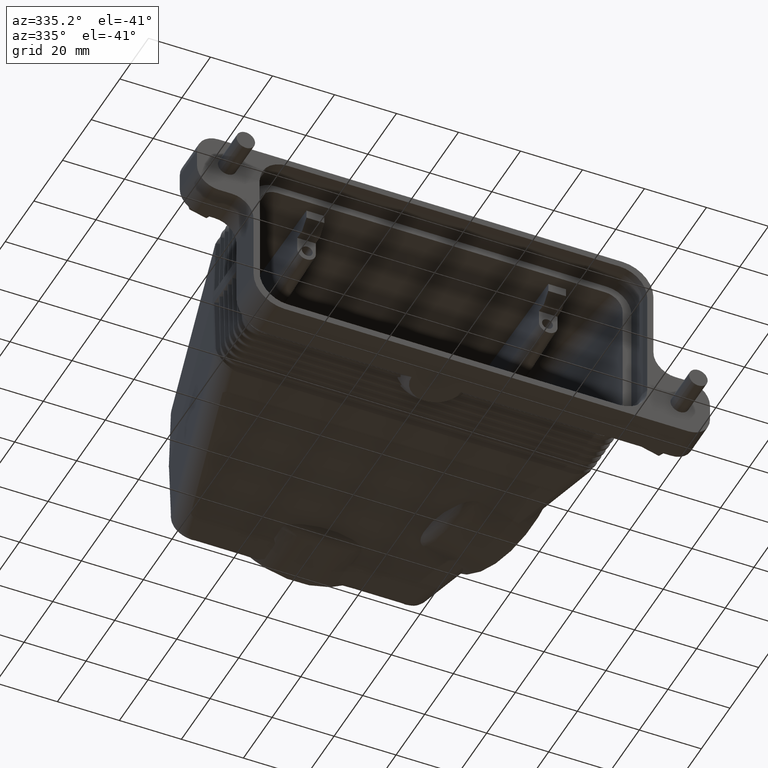
[diagram: clean part render]
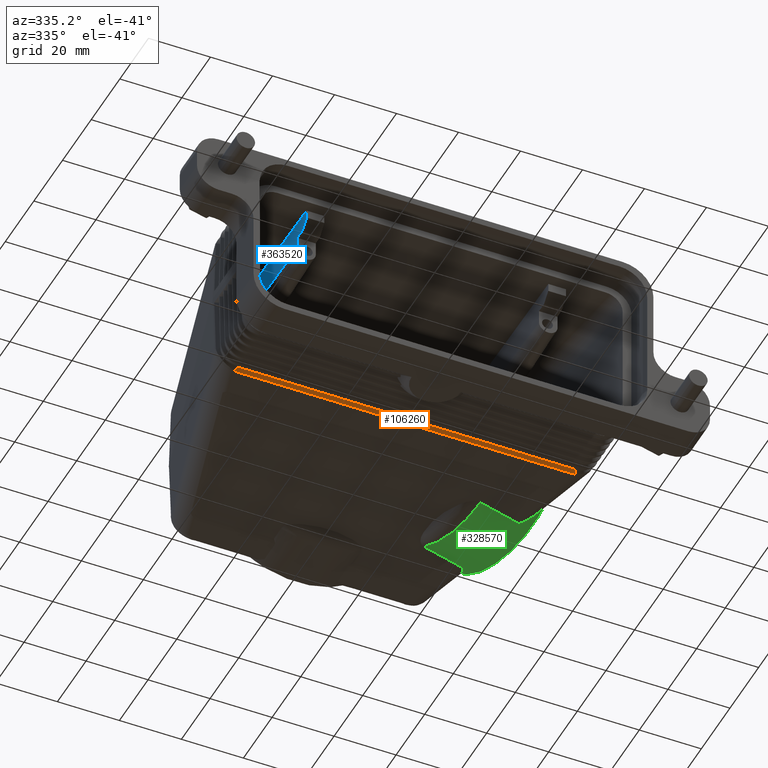
[diagram: same view with three faces highlighted in distinct colors, each labeled with its STEP entity id]
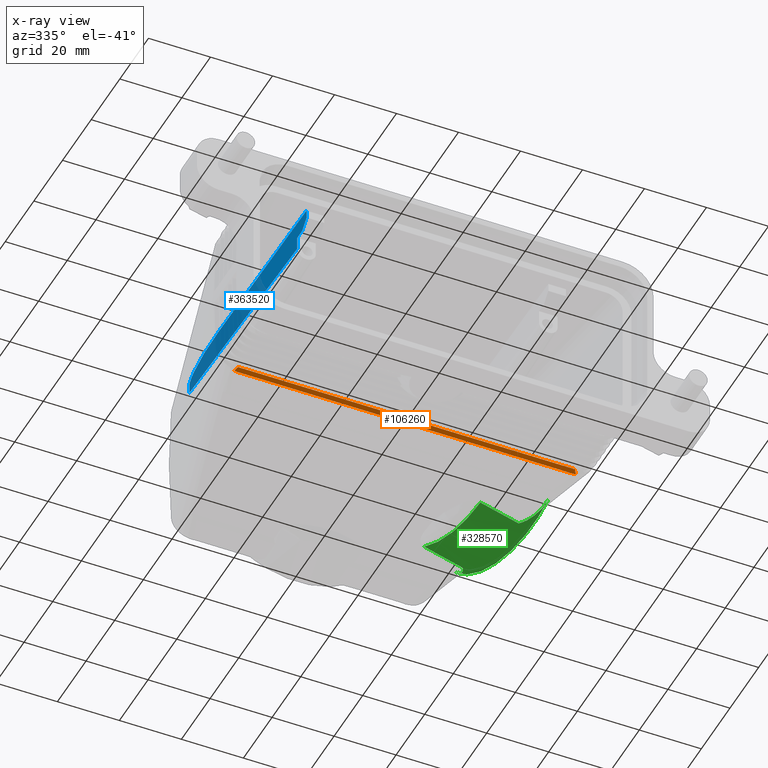
[diagram: x-ray of the same camera — body ghosted, the three highlighted faces saturated]
A machine part, auxiliary view with three faces highlighted in distinct colors.
The next image is the same camera in x-ray (body ghosted, the three faces saturated) — at least one of them is partly hidden behind the body in this view.
Their STEP definitions:

[orange] entity #106260 — the highlighted planar face has unit normal (0, -0.5547, -0.8321).
#100820=CARTESIAN_POINT('',(-77.4532993023878,29.0714931042915,
-12.6849000695277));
#100830=VERTEX_POINT('',#100820);
#101010=CARTESIAN_POINT('',(31.2231113023877,29.0714931042915,
-12.6849000695277));
#101020=VERTEX_POINT('',#101010);
#101050=CARTESIAN_POINT('',(-126.,29.0714930981126,-12.6849000654084));
#101060=DIRECTION('',(1.,1.14508620966377E-33,6.12323399573677E-17));
#101070=VECTOR('',#101060,1.);
#101080=LINE('',#101050,#101070);
#101090=EDGE_CURVE('',#100830,#101020,#101080,.T.);
#104930=CARTESIAN_POINT('',(-56.0514660972689,-3.88290137357661,
9.28469624905116));
#104940=DIRECTION('',(-0.475397519963276,0.732013807252867,
-0.488009204835246));
#104950=VECTOR('',#104940,1.);
#104960=LINE('',#104930,#104950);
#104970=CARTESIAN_POINT('',(-78.1678351297464,30.1717304203037,
-13.4183916135358));
#104980=VERTEX_POINT('',#104970);
#104990=EDGE_CURVE('',#100830,#104980,#104960,.T.);
#105370=CARTESIAN_POINT('',(-77.1020689819648,30.294143,-13.5));
#105380=VERTEX_POINT('',#105370);
#105410=CARTESIAN_POINT('',(-99.,30.294143,-13.5));
#105420=DIRECTION('',(1.,9.18485099360512E-17,0.));
#105430=VECTOR('',#105420,1.);
#105440=LINE('',#105410,#105430);
#105450=CARTESIAN_POINT('',(30.8718809819648,30.294143,-13.5));
#105460=VERTEX_POINT('',#105450);
#105470=EDGE_CURVE('',#105380,#105460,#105440,.T.);
#105810=CARTESIAN_POINT('',(-77.1020689819648,19.794143,-6.5));
#105820=DIRECTION('',(5.09483864845226E-17,-0.55470019622523,
-0.832050294337843));
#105830=DIRECTION('',(-3.39655909896819E-17,-0.832050294337843,
0.55470019622523));
#105840=AXIS2_PLACEMENT_3D('',#105810,#105820,#105830);
#105850=ELLIPSE('',#105840,12.6194294641239,7.);
#105860=EDGE_CURVE('',#104980,#105380,#105850,.T.);
#106000=CARTESIAN_POINT('',(-99.6150964,30.294143,-13.5));
#106010=DIRECTION('',(5.09483864845226E-17,-0.55470019622523,
-0.832050294337843));
#106020=DIRECTION('',(-3.39655909896819E-17,-0.832050294337843,
0.55470019622523));
#106030=AXIS2_PLACEMENT_3D('',#106000,#106010,#106020);
#106040=PLANE('',#106030);
#106050=ORIENTED_EDGE('',*,*,#104990,.T.);
#106060=ORIENTED_EDGE('',*,*,#101090,.F.);
#106070=CARTESIAN_POINT('',(9.82127809726884,-3.88290137357661,
9.28469624905117));
#106080=DIRECTION('',(-0.475397519963273,-0.732013807252868,
0.488009204835247));
#106090=VECTOR('',#106080,1.);
#106100=LINE('',#106070,#106090);
#106110=CARTESIAN_POINT('',(31.9376471297462,30.1717304203038,
-13.4183916135358));
#106120=VERTEX_POINT('',#106110);
#106130=EDGE_CURVE('',#106120,#101020,#106100,.T.);
#106140=ORIENTED_EDGE('',*,*,#106130,.T.);
#106150=CARTESIAN_POINT('',(30.8718809819648,19.7941430000001,-6.5));
#106160=DIRECTION('',(5.09483864845226E-17,-0.55470019622523,
-0.832050294337843));
#106170=DIRECTION('',(-3.39655909896819E-17,-0.832050294337843,
0.55470019622523));
#106180=AXIS2_PLACEMENT_3D('',#106150,#106160,#106170);
#106190=ELLIPSE('',#106180,12.6194294641239,7.);
#106200=EDGE_CURVE('',#105460,#106120,#106190,.T.);
#106210=ORIENTED_EDGE('',*,*,#106200,.T.);
#106220=ORIENTED_EDGE('',*,*,#105470,.T.);
#106230=ORIENTED_EDGE('',*,*,#105860,.T.);
#106240=EDGE_LOOP('',(#106230,#106220,#106210,#106140,#106060,#106050));
#106250=FACE_OUTER_BOUND('',#106240,.T.);
#106260=ADVANCED_FACE('',(#106250),#106040,.T.);

[blue] entity #363520 — the highlighted planar face has unit normal (-0.9997, -0.0233, 0).
#361330=CARTESIAN_POINT('',(-66.7851224582123,86.2453927759903,
28.9358444486131));
#361340=VERTEX_POINT('',#361330);
#361370=CARTESIAN_POINT('',(-66.7851224582123,86.2453927759903,39.));
#361380=DIRECTION('',(0.,0.,1.));
#361390=VECTOR('',#361380,1.);
#361400=LINE('',#361370,#361390);
#361410=CARTESIAN_POINT('',(-66.7851224582123,86.2453927759903,
26.2546550505069));
#361420=VERTEX_POINT('',#361410);
#361430=EDGE_CURVE('',#361420,#361340,#361400,.T.);
#362050=CARTESIAN_POINT('',(-65.115094,14.494143,26.2546550505069));
#362060=VERTEX_POINT('',#362050);
#362090=CARTESIAN_POINT('',(-65.115094,14.494143,39.));
#362100=DIRECTION('',(0.,0.,-1.));
#362110=VECTOR('',#362100,1.);
#362120=LINE('',#362090,#362110);
#362130=CARTESIAN_POINT('',(-65.115094,14.494143,30.5));
#362140=VERTEX_POINT('',#362130);
#362150=EDGE_CURVE('',#362140,#362060,#362120,.T.);
#362980=CARTESIAN_POINT('',(-65.1104389494931,14.294143,36.3));
#362990=DIRECTION('',(-0.999729241314835,-0.0232689505578674,0.));
#363000=DIRECTION('',(0.,0.,1.));
#363010=AXIS2_PLACEMENT_3D('',#362980,#362990,#363000);
#363020=PLANE('',#363010);
#363030=CARTESIAN_POINT('',(-64.7777391614018,0.,30.8373548385982));
#363040=DIRECTION('',(0.0232626536972686,-0.999458702441438,
0.0232626536972686));
#363050=VECTOR('',#363040,1.);
#363060=LINE('',#363030,#363050);
#363070=CARTESIAN_POINT('',(-65.03883832172,11.21788732172,
30.57625567828));
#363080=VERTEX_POINT('',#363070);
#363090=EDGE_CURVE('',#362140,#363080,#363060,.T.);
#363100=ORIENTED_EDGE('',*,*,#363090,.T.);
#363110=ORIENTED_EDGE('',*,*,#362150,.F.);
#363120=CARTESIAN_POINT('',(-65.1104389494931,14.294143,26.2546550505069
));
#363130=DIRECTION('',(-0.0232689505578674,0.999729241314835,0.));
#363140=VECTOR('',#363130,1.);
#363150=LINE('',#363120,#363140);
#363160=EDGE_CURVE('',#362060,#361420,#363150,.T.);
#363170=ORIENTED_EDGE('',*,*,#363160,.F.);
#363180=ORIENTED_EDGE('',*,*,#361430,.F.);
#363190=CARTESIAN_POINT('',(-66.3300448290065,66.6933974312147,
29.3577896453234));
#363200=DIRECTION('',(-0.999729241314835,-0.0232689505578674,0.));
#363210=DIRECTION('',(-0.0232625675397487,0.999455000762165,
-0.0234212382883605));
#363220=AXIS2_PLACEMENT_3D('',#363190,#363200,#363210);
#363230=ELLIPSE('',#363220,19.562232622005,5.5);
#363240=CARTESIAN_POINT('',(-66.3327855101659,66.8111482979487,
34.8565385402481));
#363250=VERTEX_POINT('',#363240);
#363260=EDGE_CURVE('',#363250,#361340,#363230,.T.);
#363270=ORIENTED_EDGE('',*,*,#363260,.T.);
#363280=CARTESIAN_POINT('',(-64.7777391614018,0.,36.4115848890122));
#363290=DIRECTION('',(0.0232626536972686,-0.999458702441438,
0.0232626536972686));
#363300=VECTOR('',#363290,1.);
#363310=LINE('',#363280,#363300);
#363320=CARTESIAN_POINT('',(-64.9707874342853,8.29414300000001,
36.2185366161288));
#363330=VERTEX_POINT('',#363320);
#363340=EDGE_CURVE('',#363250,#363330,#363310,.T.);
#363350=ORIENTED_EDGE('',*,*,#363340,.F.);
#363360=CARTESIAN_POINT('',(-64.9707874342853,8.294143,39.));
#363370=DIRECTION('',(0.,0.,1.));
#363380=VECTOR('',#363370,1.);
#363390=LINE('',#363360,#363380);
#363400=CARTESIAN_POINT('',(-64.9707874342853,8.294143,33.5));
#363410=VERTEX_POINT('',#363400);
#363420=EDGE_CURVE('',#363410,#363330,#363390,.T.);
#363430=ORIENTED_EDGE('',*,*,#363420,.T.);
#363440=CARTESIAN_POINT('',(-64.8427735453447,2.794143,39.));
#363450=DIRECTION('',(-0.0164558603633018,0.707011034093423,
-0.707011034093423));
#363460=VECTOR('',#363450,1.);
#363470=LINE('',#363440,#363460);
#363480=EDGE_CURVE('',#363410,#363080,#363470,.T.);
#363490=ORIENTED_EDGE('',*,*,#363480,.F.);
#363500=EDGE_LOOP('',(#363490,#363430,#363350,#363270,#363180,#363170,
#363110,#363100));
#363510=FACE_OUTER_BOUND('',#363500,.T.);
#363520=ADVANCED_FACE('',(#363510),#363020,.T.);

[green] entity #328570 — the highlighted cylindrical surface (partial cylindrical patch) has radius 29 mm, axis along (-0.9659, -0.2588, 0).
#76270=CARTESIAN_POINT('',(26.2440531456227,57.6145187507029,-13.));
#76280=VERTEX_POINT('',#76270);
#76310=CARTESIAN_POINT('',(10.9414596870122,53.5142011913664,-13.));
#76320=DIRECTION('',(-0.965925826289068,-0.258819045102521,
1.38964365120066E-17));
#76330=VECTOR('',#76320,1.);
#76340=LINE('',#76310,#76330);
#76350=CARTESIAN_POINT('',(12.1417584194982,53.8358202674121,-13.));
#76360=VERTEX_POINT('',#76350);
#76370=EDGE_CURVE('',#76280,#76360,#76340,.T.);
#79420=CARTESIAN_POINT('',(5.49257675923766,78.65090405226,-13.));
#79430=VERTEX_POINT('',#79420);
#79460=CARTESIAN_POINT('',(4.29227802675152,78.3292849762142,-13.));
#79470=DIRECTION('',(-0.965925826289068,-0.258819045102521,
1.38964365120066E-17));
#79480=VECTOR('',#79470,1.);
#79490=LINE('',#79460,#79480);
#79500=CARTESIAN_POINT('',(19.5948714853773,82.4296025355548,-13.));
#79510=VERTEX_POINT('',#79500);
#79520=EDGE_CURVE('',#79510,#79430,#79490,.T.);
#79780=CARTESIAN_POINT('',(38.9920905006772,0.,-6.5));
#79790=DIRECTION('',(0.258819045102521,-0.965925826289068,0.));
#79800=DIRECTION('',(-0.965925826289068,-0.258819045102521,0.));
#79810=AXIS2_PLACEMENT_3D('',#79780,#79790,#79800);
#79820=CYLINDRICAL_SURFACE('',#79810,7.);
#80010=CARTESIAN_POINT('',(7.61686885688184,65.9217430837903,
12.9999999999997));
#80020=DIRECTION('',(-0.965925826289068,-0.258819045102521,
1.38964365120066E-17));
#80030=DIRECTION('',(0.258819045102521,-0.965925826289068,0.));
#80040=AXIS2_PLACEMENT_3D('',#80010,#80020,#80030);
#80050=CYLINDRICAL_SURFACE('',#80040,29.0000000000004);
#80060=CARTESIAN_POINT('',(21.6569599437801,91.7322431679018,
-6.68323863815509));
#80070=CARTESIAN_POINT('',(21.6761221986843,91.65166540657,
-6.77281892412332));
#80080=CARTESIAN_POINT('',(21.6937757008781,91.5701243275661,
-6.86184937776426));
#80090=CARTESIAN_POINT('',(21.709967914664,91.4876643688361,
-6.95030024080259));
#80100=CARTESIAN_POINT('',(21.7261608411367,91.4052007806997,
-7.03875499693183));
#80110=CARTESIAN_POINT('',(21.7408894148174,91.3218342458226,
-7.12661314923524));
#80120=CARTESIAN_POINT('',(21.7542017425293,91.2375924926669,
-7.21386507736826));
#80130=CARTESIAN_POINT('',(21.7675143940109,91.1533486906634,
-7.30111912755961));
#80140=CARTESIAN_POINT('',(21.7794107593411,91.068226502404,
-7.38776972441393));
#80150=CARTESIAN_POINT('',(21.7899300639431,90.9822900264544,
-7.47377108625946));
#80160=CARTESIAN_POINT('',(21.8004493686461,90.8963535496787,
-7.55977244893167));
#80170=CARTESIAN_POINT('',(21.80959160201,90.8096028316406,
-7.64512453035903));
#80180=CARTESIAN_POINT('',(21.8173956502011,90.7221041091484,
-7.72978376616242));
#80190=CARTESIAN_POINT('',(21.8330033825936,90.5471107452037,
-7.89909828916633));
#80200=CARTESIAN_POINT('',(21.8432844391855,90.3688570899856,
-8.0658991471648));
#80210=CARTESIAN_POINT('',(21.8484972495362,90.1877504671881,
-8.2299427669375));
#80220=CARTESIAN_POINT('',(21.853710059498,90.0066438579002,
-8.39398637447346));
#80230=CARTESIAN_POINT('',(21.8538545144312,89.8226843712938,
-8.55527262647961));
#80240=CARTESIAN_POINT('',(21.8491655055592,89.6362999825387,
-8.71358088988437));
#80250=CARTESIAN_POINT('',(21.844476496692,89.4499155939757,
-8.87188915312592));
#80260=CARTESIAN_POINT('',(21.8349540383725,89.2611063753604,
-9.02721936988763));
#80270=CARTESIAN_POINT('',(21.8208101619462,89.0703207324569,
-9.17937426966642));
#80280=CARTESIAN_POINT('',(21.8137382239718,88.9749279142264,
-9.25545171698681));
#80290=CARTESIAN_POINT('',(21.8055105743965,88.8790413137333,
-9.33073569638334));
#80300=CARTESIAN_POINT('',(21.796151508986,88.7827188769479,
-9.40520373734402));
#80310=CARTESIAN_POINT('',(21.7867905851387,88.6863773133411,
-9.47968656548174));
#80320=CARTESIAN_POINT('',(21.7763076654286,88.5896831047961,
-9.55329054461843));
#80330=CARTESIAN_POINT('',(21.7646974022504,88.492457848466,
-9.62617306287462));
#80340=CARTESIAN_POINT('',(21.7530847329678,88.3952124432291,
-9.69907068526238));
#80350=CARTESIAN_POINT('',(21.740336852369,88.2973883528887,
-9.77128023262268));
#80360=CARTESIAN_POINT('',(21.7264610097126,88.1990400083271,
-9.8427729780995));
#80370=CARTESIAN_POINT('',(21.7125851621662,88.1006916291064,
-9.9142657487712));
#80380=CARTESIAN_POINT('',(21.6975813830392,88.0018190052142,
-9.98504172095604));
#80390=CARTESIAN_POINT('',(21.6814549591204,87.9024770106766,
-10.0550744870939));
#80400=CARTESIAN_POINT('',(21.6653285291019,87.8031349785629,
-10.1251072797217));
#80410=CARTESIAN_POINT('',(21.6480794867515,87.703323571615,
-10.19439687995));
#80420=CARTESIAN_POINT('',(21.6297106594491,87.6030979858577,
-10.2629191158396));
#80430=CARTESIAN_POINT('',(21.611341824794,87.502872359982,
-10.3314413791574));
#80440=CARTESIAN_POINT('',(21.5918532391711,87.4022325335607,
-10.3991963037865));
#80450=CARTESIAN_POINT('',(21.571244714707,87.3012339631646,
-10.4661618216284));
#80460=CARTESIAN_POINT('',(21.5506361820094,87.2002353524173,
-10.5331273662246));
#80470=CARTESIAN_POINT('',(21.5289077459796,87.0988779566,
-10.5993035418669));
#80480=CARTESIAN_POINT('',(21.5060555821104,86.9972175163105,
-10.6646701948257));
#80490=CARTESIAN_POINT('',(21.4832034096478,86.8955570377922,
-10.7300368723652));
#80500=CARTESIAN_POINT('',(21.4592275461718,86.793593450577,
-10.7945940786051));
#80510=CARTESIAN_POINT('',(21.4341198325194,86.6913829054411,
-10.8583233239849));
#80520=CARTESIAN_POINT('',(21.4090121107128,86.5891723271103,
-10.922052590062));
#80530=CARTESIAN_POINT('',(21.3827725765624,86.486714698616,
-10.9849539620775));
#80540=CARTESIAN_POINT('',(21.3553879479597,86.3840668355747,
-11.047010296596));
#80550=CARTESIAN_POINT('',(21.3280033128147,86.2814189480103,
-11.1090666459401));
#80560=CARTESIAN_POINT('',(21.2994736215318,86.1785806992284,
-11.1702780425221));
#80570=CARTESIAN_POINT('',(21.2697795736839,86.0756099863657,
-11.230628292984));
#80580=CARTESIAN_POINT('',(21.240085522586,85.9726392622326,
-11.2909785500514));
#80590=CARTESIAN_POINT('',(21.2092271528106,85.8695359044657,
-11.350467767049));
#80600=CARTESIAN_POINT('',(21.1771781228039,85.766359513932,
-11.4090802127079));
#80610=CARTESIAN_POINT('',(21.1451290952161,85.6631831311858,
-11.467692653943));
#80620=CARTESIAN_POINT('',(21.1118894432907,85.5599334919959,
-11.5254284557247));
#80630=CARTESIAN_POINT('',(21.0774246098921,85.4566727852118,
-11.5822717502759));
#80640=CARTESIAN_POINT('',(21.0429597879184,85.3534121126577,
-11.6391150259841));
#80650=CARTESIAN_POINT('',(21.0072698157215,85.250140079702,
-11.6950659582029));
#80660=CARTESIAN_POINT('',(20.9703105662149,85.1469226828118,
-11.7501078088149));
#80670=CARTESIAN_POINT('',(20.9333513417841,85.0437053559514,
-11.8051496220828));
#80680=CARTESIAN_POINT('',(20.8951228622487,84.9405422831203,
-11.8592825573394));
#80690=CARTESIAN_POINT('',(20.8555698640877,84.8375049184397,
-11.9124881049082));
#80700=CARTESIAN_POINT('',(20.8160169111091,84.7344676714618,
-11.9656935916987));
#80710=CARTESIAN_POINT('',(20.7751394453921,84.631555634218,
-12.0179719449448));
#80720=CARTESIAN_POINT('',(20.7328692530157,84.5288479216259,
-12.0693017731417));
#80730=CARTESIAN_POINT('',(20.6905991348855,84.4261403894366,
-12.1206315111794));
#80740=CARTESIAN_POINT('',(20.646936267808,84.3236365304373,
-12.1710130430862));
#80750=CARTESIAN_POINT('',(20.6017973895353,84.2214260342092,
-12.2204207226169));
#80760=CARTESIAN_POINT('',(20.5566562736065,84.1192104711308,
-12.2698308514197));
#80770=CARTESIAN_POINT('',(20.5100497263795,84.0173102951428,
-12.3182567350193));
#80780=CARTESIAN_POINT('',(20.461846337114,83.9157647364469,
-12.3656971316383));
#80790=CARTESIAN_POINT('',(20.4136205368432,83.8141719665884,
-12.4131595845275));
#80800=CARTESIAN_POINT('',(20.3636680159853,83.7126663053603,
-12.4597597445292));
#80810=CARTESIAN_POINT('',(20.311897803596,83.6114923831424,
-12.5053902981679));
#80820=CARTESIAN_POINT('',(20.2601274891622,83.5103182614999,
-12.5510209417493));
#80830=CARTESIAN_POINT('',(20.2065396650013,83.409475162353,
-12.5956824000365));
#80840=CARTESIAN_POINT('',(20.1510198001303,83.3092126160718,
-12.6392731183224));
#80850=CARTESIAN_POINT('',(20.095499844546,83.2089499059727,
-12.6828639078308));
#80860=CARTESIAN_POINT('',(20.0380478384787,83.1092663846526,
-12.7253846636499));
#80870=CARTESIAN_POINT('',(19.9785180425686,83.0104205472991,
-12.766736143933));
#80880=CARTESIAN_POINT('',(19.9487530587527,82.9609974860552,
-12.7874119437165));
#80890=CARTESIAN_POINT('',(19.9184679693535,82.9117838196451,
-12.807795518646));
#80900=CARTESIAN_POINT('',(19.8876408943461,82.8628131976938,
-12.8278743202989));
#80910=CARTESIAN_POINT('',(19.8568138192937,82.8138425756713,
-12.8479531219811));
#80920=CARTESIAN_POINT('',(19.8254447369972,82.765114907415,
-12.8677271915808));
#80930=CARTESIAN_POINT('',(19.7935090423681,82.71666531125,
-12.8871835671382));
#80940=CARTESIAN_POINT('',(19.761573354031,82.6682157246307,
-12.9066399388623));
#80950=CARTESIAN_POINT('',(19.7290710185363,82.6200440967779,
-12.9257786661031));
#80960=CARTESIAN_POINT('',(19.6959744826072,82.5721875438524,
-12.9445860984765));
#80970=CARTESIAN_POINT('',(19.6628779621004,82.5243310132268,
-12.9633935220862));
#80980=CARTESIAN_POINT('',(19.629187188724,82.4767894180247,
-12.9818697096791));
#80990=CARTESIAN_POINT('',(19.594871485374,82.4296025355671,
-12.9999999999937));
#81000=B_SPLINE_CURVE_WITH_KNOTS('',3,(#80060,#80070,#80080,#80090,
#80100,#80110,#80120,#80130,#80140,#80150,#80160,#80170,#80180,#80190,
#80200,#80210,#80220,#80230,#80240,#80250,#80260,#80270,#80280,#80290,
#80300,#80310,#80320,#80330,#80340,#80350,#80360,#80370,#80380,#80390,
#80400,#80410,#80420,#80430,#80440,#80450,#80460,#80470,#80480,#80490,
#80500,#80510,#80520,#80530,#80540,#80550,#80560,#80570,#80580,#80590,
#80600,#80610,#80620,#80630,#80640,#80650,#80660,#80670,#80680,#80690,
#80700,#80710,#80720,#80730,#80740,#80750,#80760,#80770,#80780,#80790,
#80800,#80810,#80820,#80830,#80840,#80850,#80860,#80870,#80880,#80890,
#80900,#80910,#80920,#80930,#80940,#80950,#80960,#80970,#80980,#80990),
.UNSPECIFIED.,.F.,.F.,(4,3,3,3,3,3,3,3,3,3,3,3,3,3,3,3,3,3,3,3,3,3,3,3,3
,3,3,3,3,3,3,4),(0.,0.366006507096595,0.732023825388874,1.09810602140899
,1.46416923093882,2.19682874463189,2.93039743936483,3.66402541442328,
4.03053371004056,4.39669564280054,4.76340771806067,5.13090354719218,
5.49902133663297,5.86760479814104,6.23650480358824,6.60558087793723,
6.97470251266021,7.34375027450955,7.71261667747386,8.08120678009394,
8.4494384682502,8.81724238899219,9.18456152087274,9.55135041240394,
9.91758888330653,10.2844571996193,10.6521441265358,11.0199724953961,
11.2037814403929,11.3874632613826,11.5709937887651,11.7543644354718),
.UNSPECIFIED.);
#81010=SURFACE_CURVE('',#81000,(#80050,#79820),.CURVE_3D.);
#81020=CARTESIAN_POINT('',(21.6569599437802,91.7322431679018,
-6.68323863815509));
#81030=VERTEX_POINT('',#81020);
#81040=EDGE_CURVE('',#81030,#79510,#81010,.T.);
#81740=CARTESIAN_POINT('',(38.9920905006772,0.,-6.5));
#81750=DIRECTION('',(0.258819045102521,-0.965925826289068,0.));
#81760=DIRECTION('',(-0.965925826289068,-0.258819045102521,0.));
#81770=AXIS2_PLACEMENT_3D('',#81740,#81750,#81760);
#81780=CYLINDRICAL_SURFACE('',#81770,7.);
#81830=CARTESIAN_POINT('',(32.681194451639,50.5892398700185,
-6.68323863815512));
#81840=VERTEX_POINT('',#81830);
#81890=CARTESIAN_POINT('',(32.6811944516389,50.5892398700185,
-6.68323863815512));
#81900=CARTESIAN_POINT('',(32.6574786055251,50.6686769582921,
-6.77290196792552));
#81910=CARTESIAN_POINT('',(32.6319686016571,50.7482018234271,
-6.86202309703613));
#81920=CARTESIAN_POINT('',(32.6047335415521,50.8277825363975,
-6.95055302308652));
#81930=CARTESIAN_POINT('',(32.5774978842038,50.9073649945096,
-7.03908489052783));
#81940=CARTESIAN_POINT('',(32.5485320412888,50.9870178318382,
-7.12704167377304));
#81950=CARTESIAN_POINT('',(32.5179054956781,51.0667026561132,
-7.21437122794697));
#81960=CARTESIAN_POINT('',(32.4566603519878,51.2260516266007,
-7.38900767443935));
#81970=CARTESIAN_POINT('',(32.3887322280555,51.3856416832028,
-7.56125621254002));
#81980=CARTESIAN_POINT('',(32.3146154547614,51.5452348060096,
-7.73081543159498));
#81990=CARTESIAN_POINT('',(32.2775576839196,51.6250300414206,
-7.81559363232587));
#82000=CARTESIAN_POINT('',(32.23895400805,51.7048226730763,
-7.89969689530012));
#82010=CARTESIAN_POINT('',(32.1988683830899,51.7845759994289,
-7.98308622384644));
#82020=CARTESIAN_POINT('',(32.1587780600908,51.8643386728787,
-8.06648532562969));
#82030=CARTESIAN_POINT('',(32.1172328904433,51.9440119044863,
-8.14911894245677));
#82040=CARTESIAN_POINT('',(32.0741974707513,52.0237398525103,
-8.23113759855988));
#82050=CARTESIAN_POINT('',(31.9881319996115,52.1831858032831,
-8.39516467974761));
#82060=CARTESIAN_POINT('',(31.8961785744929,52.3427049785852,
-8.55657560180854));
#82070=CARTESIAN_POINT('',(31.798700137057,52.5020814046312,
-8.71517186385107));
#82080=CARTESIAN_POINT('',(31.7012216209328,52.6614579593317,
-8.87376825391845));
#82090=CARTESIAN_POINT('',(31.5982179362131,52.820692256342,
-9.0295504556794));
#82100=CARTESIAN_POINT('',(31.4900312631127,52.9795424814989,
-9.18234198239194));
#82110=CARTESIAN_POINT('',(31.3818445426624,53.1383927761796,
-9.33513357597659));
#82120=CARTESIAN_POINT('',(31.2684746868216,53.2968596474433,
-9.48493503856482));
#82130=CARTESIAN_POINT('',(31.1502416330324,53.4546725146965,
-9.63158970448053));
#82140=CARTESIAN_POINT('',(31.0911250703229,53.5335789961274,
-9.70491708186277));
#82150=CARTESIAN_POINT('',(31.0307922957377,53.6123215768883,
-9.7774581217175));
#82160=CARTESIAN_POINT('',(30.9692809814291,53.6908634439052,
-9.84919494489114));
#82170=CARTESIAN_POINT('',(30.9077696680077,53.7694053097893,
-9.92093176703009));
#82180=CARTESIAN_POINT('',(30.8450798073008,53.8477464953689,
-9.99186439692418));
#82190=CARTESIAN_POINT('',(30.7812474099402,53.9258479308946,
-10.0619759478501));
#82200=CARTESIAN_POINT('',(30.7174150157795,54.0039493625051,
-10.1320874952615));
#82210=CARTESIAN_POINT('',(30.6524400751506,54.0818110840094,
-10.2013779919071));
#82220=CARTESIAN_POINT('',(30.5863568134151,54.15939153726,
-10.2698314372147));
#82230=CARTESIAN_POINT('',(30.5202735578023,54.2369719833228,
-10.3382848761801));
#82240=CARTESIAN_POINT('',(30.4530819681952,54.3142712089386,
-10.4059012965398));
#82250=CARTESIAN_POINT('',(30.3848143438481,54.391244885149,
-10.4726654617756));
#82260=CARTESIAN_POINT('',(30.3165467293126,54.4682185502966,
-10.539429617416));
#82270=CARTESIAN_POINT('',(30.2472030630543,54.5448667233421,
-10.6053415561009));
#82280=CARTESIAN_POINT('',(30.1768135597889,54.6211419611205,
-10.6703866639734));
#82290=CARTESIAN_POINT('',(30.1064240709859,54.6974171832271,
-10.7354317584815));
#82300=CARTESIAN_POINT('',(30.0349887227984,54.7733195388757,
-10.7996100668805));
#82310=CARTESIAN_POINT('',(29.9625354687523,54.8487980536573,
-10.8629074330536));
#82320=CARTESIAN_POINT('',(29.8900718226377,54.9242873944246,
-10.9262138780539));
#82330=CARTESIAN_POINT('',(29.8166371342388,54.9993055556772,
-10.9886001455582));
#82340=CARTESIAN_POINT('',(29.7421186312411,55.0739361189724,
-11.0501667342544));
#82350=CARTESIAN_POINT('',(29.6675948045108,55.1485720140059,
-11.1117377213758));
#82360=CARTESIAN_POINT('',(29.5919830427992,55.2228225800658,
-11.1724901644661));
#82370=CARTESIAN_POINT('',(29.5152937352154,55.2966286727098,
-11.2324070812497));
#82380=CARTESIAN_POINT('',(29.4386044318632,55.3704347612812,
-11.2923239947271));
#82390=CARTESIAN_POINT('',(29.3608375302495,55.4437965389814,
-11.3514054839854));
#82400=CARTESIAN_POINT('',(29.2819986020107,55.516649579472,
-11.4096347757454));
#82410=CARTESIAN_POINT('',(29.2031784028007,55.5894853129453,
-11.4678502345156));
#82420=CARTESIAN_POINT('',(29.123199278185,55.661893746189,
-11.5252787688268));
#82430=CARTESIAN_POINT('',(29.0420377393509,55.7338140975204,
-11.5819083893919));
#82440=CARTESIAN_POINT('',(28.9608796802483,55.8057313653282,
-11.6385355820104));
#82450=CARTESIAN_POINT('',(28.8785541896596,55.8771470592217,
-11.6943530892741));
#82460=CARTESIAN_POINT('',(28.7950734423846,55.9479564757929,
-11.7493210453667));
#82470=CARTESIAN_POINT('',(28.711592630705,56.0187659469929,
-11.8042890438665));
#82480=CARTESIAN_POINT('',(28.6269565373828,56.088969386104,
-11.8584076390695));
#82490=CARTESIAN_POINT('',(28.5411690622992,56.1584554735476,
-11.911639446149));
#82500=CARTESIAN_POINT('',(28.4553815322305,56.227941605528,
-11.9648712873473));
#82510=CARTESIAN_POINT('',(28.3684425150494,56.2967107459745,
-12.0172165569098));
#82520=CARTESIAN_POINT('',(28.2803458723585,56.3646426469447,
-12.0686393188749));
#82530=CARTESIAN_POINT('',(28.1922492031482,56.4325745683642,
-12.1200620963196));
#82540=CARTESIAN_POINT('',(28.1029946852188,56.4996697606396,
-12.1705626698649));
#82550=CARTESIAN_POINT('',(28.0125645011725,56.5657957242132,
-12.220105075252));
#82560=CARTESIAN_POINT('',(27.9221343466453,56.6319216662013,
-12.2696474644669));
#82570=CARTESIAN_POINT('',(27.8305281293548,56.6970790864851,
-12.318232101603));
#82580=CARTESIAN_POINT('',(27.737714987387,56.7611185950818,
-12.3658209640413));
#82590=CARTESIAN_POINT('',(27.6449019705521,56.825158017339,
-12.4134097623192));
#82600=CARTESIAN_POINT('',(27.5508813761484,56.8880804915705,
-12.4600033480464));
#82610=CARTESIAN_POINT('',(27.4556084474876,56.9497134056707,
-12.5055589181076));
#82620=CARTESIAN_POINT('',(27.3603357954972,57.0113461407903,
-12.5511143558765));
#82630=CARTESIAN_POINT('',(27.2638097771364,57.0716906106287,
-12.5956325302172));
#82640=CARTESIAN_POINT('',(27.1659717757331,57.1305425143543,
-12.6390622722795));
#82650=CARTESIAN_POINT('',(27.1170453991009,57.1599729030162,
-12.6607804174449));
#82660=CARTESIAN_POINT('',(27.0678228290704,57.1890108940787,
-12.6822124862246));
#82670=CARTESIAN_POINT('',(27.0182036870022,57.2176803043676,
-12.7033902265246));
#82680=CARTESIAN_POINT('',(26.968576585501,57.2463543135319,
-12.7245713639572));
#82690=CARTESIAN_POINT('',(26.9185356447088,57.2746686747374,
-12.7455047757296));
#82700=CARTESIAN_POINT('',(26.8680924050876,57.3025741778055,
-12.7661698474524));
#82710=CARTESIAN_POINT('',(26.7672059228758,57.3583851855842,
-12.8074999921145));
#82720=CARTESIAN_POINT('',(26.6647113454578,57.4125627192624,
-12.8477566052806));
#82730=CARTESIAN_POINT('',(26.5606846947278,57.4646952460431,
-12.8867803676825));
#82740=CARTESIAN_POINT('',(26.5086711781852,57.4907616052413,
-12.9062923206003));
#82750=CARTESIAN_POINT('',(26.4562740370439,57.5163164319612,
-12.9254962522977));
#82760=CARTESIAN_POINT('',(26.403500155103,57.5413054777251,
-12.9443726728239));
#82770=CARTESIAN_POINT('',(26.3507262597436,57.5662945298429,
-12.9632490981497));
#82780=CARTESIAN_POINT('',(26.2975755572238,57.590717867455,
-12.9817980548144));
#82790=CARTESIAN_POINT('',(26.2440531467161,57.6145187502167,
-12.9999999996282));
#82800=B_SPLINE_CURVE_WITH_KNOTS('',3,(#81890,#81900,#81910,#81920,
#81930,#81940,#81950,#81960,#81970,#81980,#81990,#82000,#82010,#82020,
#82030,#82040,#82050,#82060,#82070,#82080,#82090,#82100,#82110,#82120,
#82130,#82140,#82150,#82160,#82170,#82180,#82190,#82200,#82210,#82220,
#82230,#82240,#82250,#82260,#82270,#82280,#82290,#82300,#82310,#82320,
#82330,#82340,#82350,#82360,#82370,#82380,#82390,#82400,#82410,#82420,
#82430,#82440,#82450,#82460,#82470,#82480,#82490,#82500,#82510,#82520,
#82530,#82540,#82550,#82560,#82570,#82580,#82590,#82600,#82610,#82620,
#82630,#82640,#82650,#82660,#82670,#82680,#82690,#82700,#82710,#82720,
#82730,#82740,#82750,#82760,#82770,#82780,#82790),.UNSPECIFIED.,.F.,.F.,
(4,3,3,3,3,3,3,3,3,3,3,3,3,3,3,3,3,3,3,3,3,3,3,3,3,3,3,3,3,3,4),(0.,
0.366355187364648,0.732731626410596,1.46565600234996,1.83216721417017,
2.19860902151208,2.93285565247446,3.66879370790781,4.40576982805843,
4.77440413443603,5.14299096968223,5.51141318232132,5.87954762607921,
6.24726573231215,6.61443404974382,6.98096200128195,7.34737588845106,
7.71377970582361,8.0804217961564,8.44768509816189,8.81528826443322,
9.18298258483213,9.55056996025705,9.91790737834537,10.2849097908259,
10.6515510712881,10.8347654288777,11.0182941082616,11.3861950980529,
11.5702999265987,11.7543644561973),.UNSPECIFIED.);
#82810=SURFACE_CURVE('',#82800,(#81780,#80050),.CURVE_3D.);
#82820=EDGE_CURVE('',#81840,#76280,#82810,.T.);
#83700=CARTESIAN_POINT('',(27.6669383027551,71.294143,12.9999999999997))
;
#83710=DIRECTION('',(-0.965594827632935,-0.258730354279914,
0.0261769483078732));
#83720=DIRECTION('',(-0.025284990424007,-0.00677509276474789,
-0.999657324975557));
#83730=AXIS2_PLACEMENT_3D('',#83700,#83710,#83720);
#83740=ELLIPSE('',#83730,29.0099409822356,29.0000000000004);
#83750=EDGE_CURVE('',#81030,#81840,#83740,.T.);
#328430=ORIENTED_EDGE('',*,*,#81040,.F.);
#328440=ORIENTED_EDGE('',*,*,#79520,.F.);
#328450=CARTESIAN_POINT('',(8.81716758936795,66.2433621598361,
12.9999999999997));
#328460=DIRECTION('',(0.965925826289068,0.258819045102521,0.));
#328470=DIRECTION('',(0.258819045102521,-0.965925826289068,0.));
#328480=AXIS2_PLACEMENT_3D('',#328450,#328460,#328470);
#328490=CIRCLE('',#328480,29.0000000000004);
#328500=EDGE_CURVE('',#76360,#79430,#328490,.T.);
#328510=ORIENTED_EDGE('',*,*,#328500,.T.);
#328520=ORIENTED_EDGE('',*,*,#76370,.T.);
#328530=ORIENTED_EDGE('',*,*,#82820,.T.);
#328540=ORIENTED_EDGE('',*,*,#83750,.T.);
#328550=EDGE_LOOP('',(#328540,#328530,#328520,#328510,#328440,#328430));
#328560=FACE_OUTER_BOUND('',#328550,.T.);
#328570=ADVANCED_FACE('',(#328560),#80050,.T.);